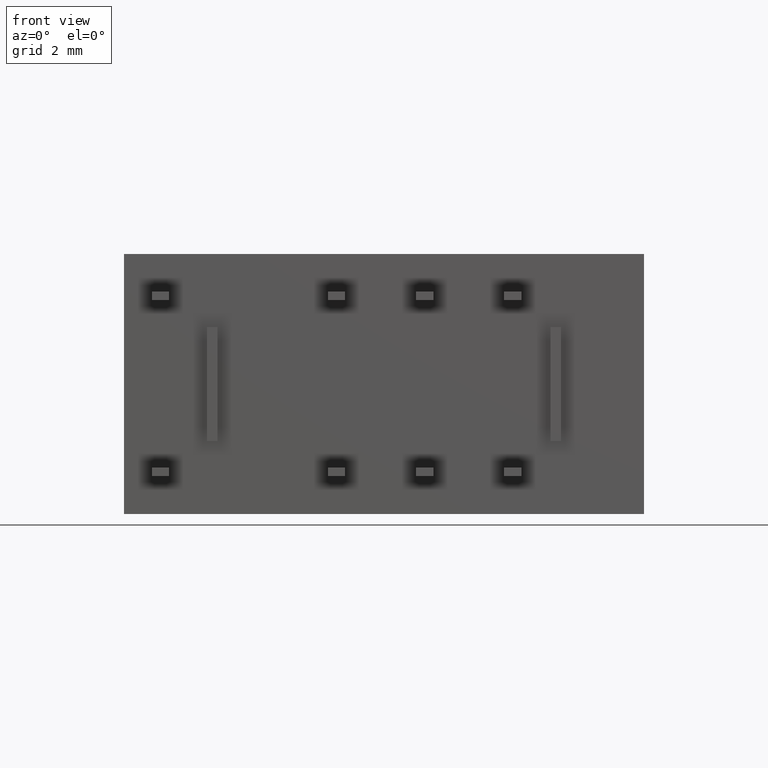
[diagram: clean part render]
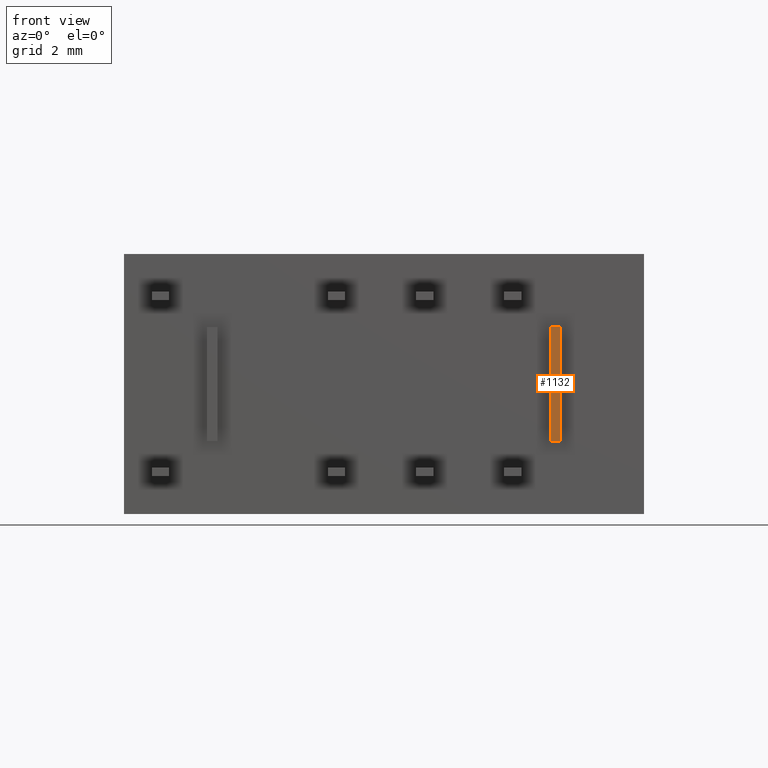
[diagram: same view with one face highlighted and labeled with its STEP entity id]
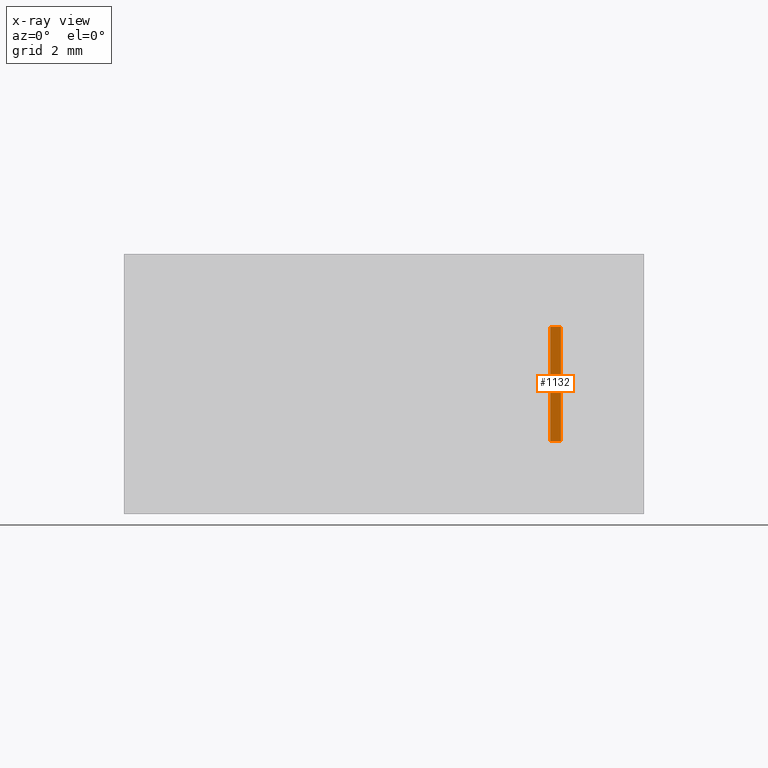
[diagram: x-ray of the same camera — body ghosted, the highlighted face saturated]
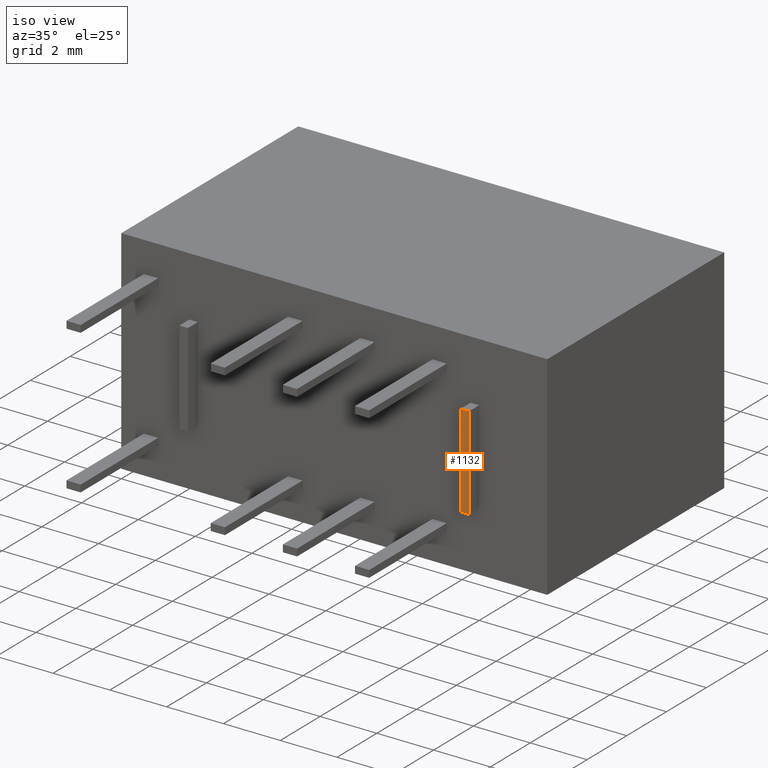
[diagram: same view with one face highlighted and labeled with its STEP entity id]
A machine part, front view. The second image highlights one B-rep face of the part: STEP entity #1132.
The next image is the same camera in x-ray: the body ghosted, the highlighted face saturated — about 0% of this face is hidden behind the body in this view.
A second angle (iso view) of the same face is appended — the face is thin or edge-on in the first view.
In plain terms, the highlighted planar face has unit normal (0, 1, 0).
Its self-contained STEP definition (entity closure, byte-faithful):
#91 = DIRECTION ( 'NONE',  ( 0.0000000000000000000, -0.0000000000000000000, 1.000000000000000000 ) ) ;
#243 = CARTESIAN_POINT ( 'NONE',  ( 12.60042910588148900, -0.5000000000000000000, -5.393876848155541000 ) ) ;
#269 = DIRECTION ( 'NONE',  ( 1.000000000000000000, -0.0000000000000000000, -0.0000000000000000000 ) ) ;
#406 = VERTEX_POINT ( 'NONE', #3015 ) ;
#489 = LINE ( 'NONE', #923, #4690 ) ;
#663 = VERTEX_POINT ( 'NONE', #3569 ) ;
#726 = CARTESIAN_POINT ( 'NONE',  ( 12.60042910588148900, -0.5000000000000000000, -5.393876848155541000 ) ) ;
#923 = CARTESIAN_POINT ( 'NONE',  ( 12.30042910588149000, -0.5000000000000000000, -3.750000000000000000 ) ) ;
#1132 = ADVANCED_FACE ( 'NONE', ( #4263 ), #2013, .F. ) ;
#1252 = VECTOR ( 'NONE', #269, 1000.000000000000000 ) ;
#1268 = EDGE_CURVE ( 'NONE', #4541, #1410, #4278, .T. ) ;
#1270 = CARTESIAN_POINT ( 'NONE',  ( 0.0000000000000000000, -0.5000000000000000000, 0.0000000000000000000 ) ) ;
#1358 = LINE ( 'NONE', #2689, #3264 ) ;
#1410 = VERTEX_POINT ( 'NONE', #726 ) ;
#1951 = CARTESIAN_POINT ( 'NONE',  ( 12.60042910588148900, -0.5000000000000000000, -2.106123151844458500 ) ) ;
#2013 = PLANE ( 'NONE',  #2488 ) ;
#2039 = EDGE_CURVE ( 'NONE', #1410, #663, #4454, .T. ) ;
#2234 = ORIENTED_EDGE ( 'NONE', *, *, #2039, .T. ) ;
#2488 = AXIS2_PLACEMENT_3D ( 'NONE', #1270, #2768, #91 ) ;
#2689 = CARTESIAN_POINT ( 'NONE',  ( 12.60042910588148900, -0.5000000000000000000, -2.106123151844458500 ) ) ;
#2740 = EDGE_CURVE ( 'NONE', #663, #406, #1358, .T. ) ;
#2768 = DIRECTION ( 'NONE',  ( 0.0000000000000000000, 1.000000000000000000, 0.0000000000000000000 ) ) ;
#2935 = ORIENTED_EDGE ( 'NONE', *, *, #4221, .T. ) ;
#3015 = CARTESIAN_POINT ( 'NONE',  ( 12.30042910588149000, -0.5000000000000000000, -2.106123151844458500 ) ) ;
#3068 = DIRECTION ( 'NONE',  ( -1.000000000000000000, 0.0000000000000000000, 0.0000000000000000000 ) ) ;
#3264 = VECTOR ( 'NONE', #3068, 1000.000000000000000 ) ;
#3348 = CARTESIAN_POINT ( 'NONE',  ( 12.30042910588149000, -0.5000000000000000000, -5.393876848155541000 ) ) ;
#3569 = CARTESIAN_POINT ( 'NONE',  ( 12.60042910588148900, -0.5000000000000000000, -2.106123151844458500 ) ) ;
#3868 = VECTOR ( 'NONE', #4626, 1000.000000000000000 ) ;
#4221 = EDGE_CURVE ( 'NONE', #406, #4541, #489, .T. ) ;
#4263 = FACE_OUTER_BOUND ( 'NONE', #4760, .T. ) ;
#4278 = LINE ( 'NONE', #243, #1252 ) ;
#4282 = ORIENTED_EDGE ( 'NONE', *, *, #2740, .T. ) ;
#4454 = LINE ( 'NONE', #1951, #3868 ) ;
#4541 = VERTEX_POINT ( 'NONE', #3348 ) ;
#4571 = ORIENTED_EDGE ( 'NONE', *, *, #1268, .T. ) ;
#4626 = DIRECTION ( 'NONE',  ( -0.0000000000000000000, -0.0000000000000000000, 1.000000000000000000 ) ) ;
#4683 = DIRECTION ( 'NONE',  ( -0.0000000000000000000, -0.0000000000000000000, -1.000000000000000000 ) ) ;
#4690 = VECTOR ( 'NONE', #4683, 1000.000000000000000 ) ;
#4760 = EDGE_LOOP ( 'NONE', ( #2234, #4282, #2935, #4571 ) ) ;